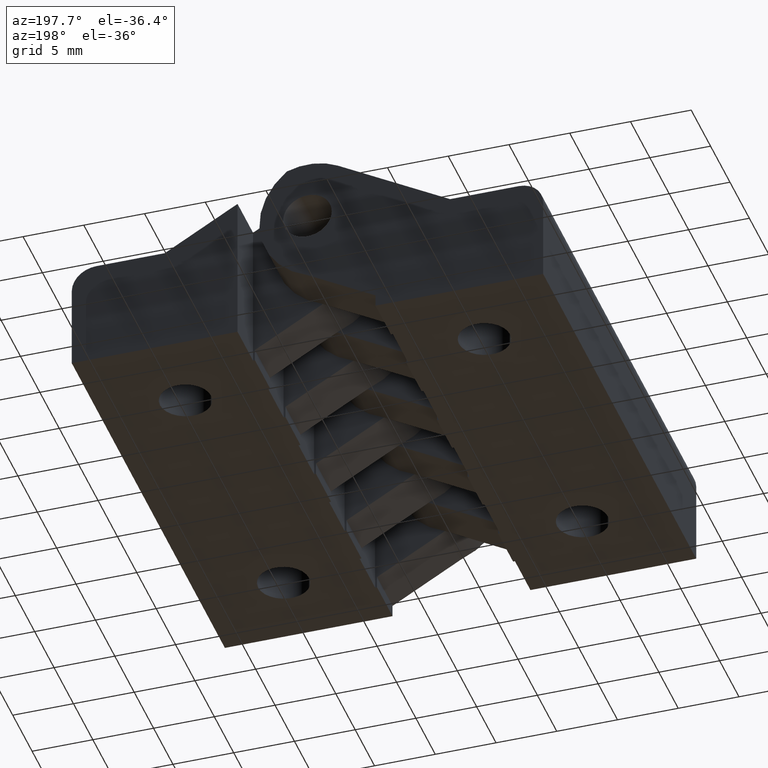
[diagram: clean part render]
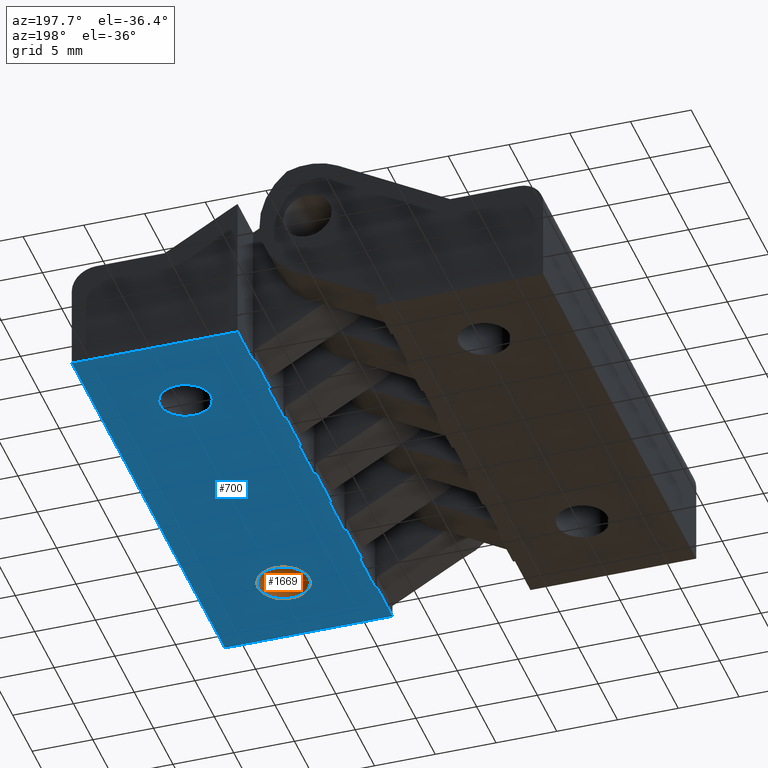
[diagram: same view with the hole feature highlighted: cylindrical wall and planar end face, labeled with their STEP entity ids]
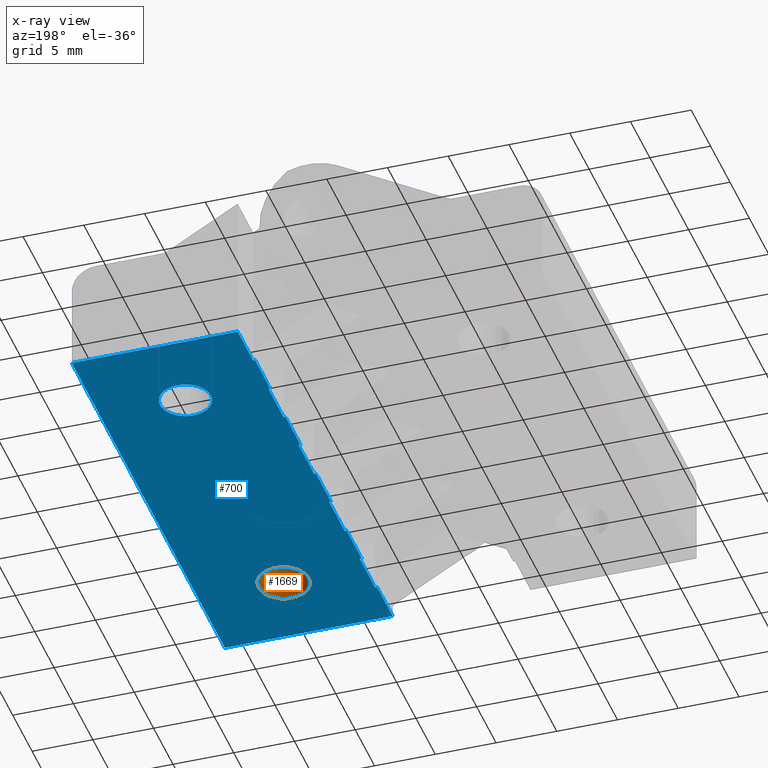
[diagram: x-ray of the same camera — body ghosted, the hole faces saturated]
A machine part, auxiliary view. The highlighted faces form one hole feature of diameter 4.2 mm: the cylindrical wall (entity #1669, orange) and its adjacent planar end face (entity #700, blue) — they share a circular edge in the B-rep.
The next image is the same camera in x-ray (body ghosted, the hole faces saturated) — the bore reads through the body.
Wall:
#660=CARTESIAN_POINT('',(26.899999999892458,-25.900000000055115,1.585918E-015));
#661=VERTEX_POINT('',#660);
#662=CARTESIAN_POINT('',(22.699999999909295,-25.900000000055115,1.585918E-015));
#663=VERTEX_POINT('',#662);
#664=CARTESIAN_POINT('',(24.799999999900876,-25.900000000055115,1.585918E-015));
#665=DIRECTION('',(0.0,6.123234E-017,1.0));
#666=DIRECTION('',(1.0,0.0,0.0));
#667=AXIS2_PLACEMENT_3D('',#664,#665,#666);
#668=CIRCLE('',#667,2.099999999991582);
#669=EDGE_CURVE('',#661,#663,#668,.T.);
#671=CARTESIAN_POINT('',(24.799999999900876,-25.900000000055115,1.585918E-015));
#672=DIRECTION('',(0.0,6.123234E-017,1.0));
#673=DIRECTION('',(1.0,0.0,0.0));
#674=AXIS2_PLACEMENT_3D('',#671,#672,#673);
#675=CIRCLE('',#674,2.099999999991582);
#676=EDGE_CURVE('',#663,#661,#675,.T.);
#1635=CARTESIAN_POINT('',(24.799999999900876,-25.900000000055115,-2.158050966487322));
#1636=DIRECTION('',(0.0,-6.123234E-017,-1.0));
#1637=DIRECTION('',(1.0,0.0,0.0));
#1638=AXIS2_PLACEMENT_3D('',#1635,#1636,#1637);
#1639=CYLINDRICAL_SURFACE('',#1638,2.099999999991582);
#1640=CARTESIAN_POINT('',(22.699999999909295,-25.900000000055115,6.849999999972654));
#1641=VERTEX_POINT('',#1640);
#1642=CARTESIAN_POINT('',(26.899999999892458,-25.900000000055115,6.849999999972654));
#1643=VERTEX_POINT('',#1642);
#1644=CARTESIAN_POINT('',(24.799999999900876,-25.900000000055115,6.849999999972654));
#1645=DIRECTION('',(0.0,-6.123234E-017,-1.0));
#1646=DIRECTION('',(1.0,0.0,0.0));
#1647=AXIS2_PLACEMENT_3D('',#1644,#1645,#1646);
#1648=CIRCLE('',#1647,2.099999999991582);
#1649=EDGE_CURVE('',#1641,#1643,#1648,.T.);
#1650=ORIENTED_EDGE('',*,*,#1649,.F.);
#1651=CARTESIAN_POINT('',(24.799999999900876,-25.900000000055115,6.849999999972654));
#1652=DIRECTION('',(0.0,-6.123234E-017,-1.0));
#1653=DIRECTION('',(1.0,0.0,0.0));
#1654=AXIS2_PLACEMENT_3D('',#1651,#1652,#1653);
#1655=CIRCLE('',#1654,2.099999999991582);
#1656=EDGE_CURVE('',#1643,#1641,#1655,.T.);
#1657=ORIENTED_EDGE('',*,*,#1656,.F.);
#1658=CARTESIAN_POINT('',(26.899999999892458,-25.900000000055115,1.776357E-015));
#1659=DIRECTION('',(0.0,0.0,1.0));
#1660=VECTOR('',#1659,6.849999999972653);
#1661=LINE('',#1658,#1660);
#1662=EDGE_CURVE('',#661,#1643,#1661,.T.);
#1663=ORIENTED_EDGE('',*,*,#1662,.F.);
#1664=ORIENTED_EDGE('',*,*,#676,.F.);
#1665=ORIENTED_EDGE('',*,*,#669,.F.);
#1666=ORIENTED_EDGE('',*,*,#1662,.T.);
#1667=EDGE_LOOP('',(#1650,#1657,#1663,#1664,#1665,#1666));
#1668=FACE_OUTER_BOUND('',#1667,.T.);
#1669=ADVANCED_FACE('',(#1668),#1639,.F.);
End face:
#373=CARTESIAN_POINT('',(17.999999999928065,-20.825000000027558,1.275163E-015));
#374=VERTEX_POINT('',#373);
#381=CARTESIAN_POINT('',(17.999999999928065,-24.700000000027561,1.512439E-015));
#382=VERTEX_POINT('',#381);
#383=CARTESIAN_POINT('',(17.999999999928065,-20.825000000027558,1.275163E-015));
#384=DIRECTION('',(0.0,-1.0,0.0));
#385=VECTOR('',#384,3.875000000000004);
#386=LINE('',#383,#385);
#387=EDGE_CURVE('',#374,#382,#386,.T.);
#403=CARTESIAN_POINT('',(17.999999999928065,2.799999999972442,-1.714506E-016));
#404=VERTEX_POINT('',#403);
#411=CARTESIAN_POINT('',(17.999999999928065,-1.075000000027558,6.582477E-017));
#412=VERTEX_POINT('',#411);
#413=CARTESIAN_POINT('',(17.999999999928065,2.799999999972442,-1.714506E-016));
#414=DIRECTION('',(0.0,-1.0,0.0));
#415=VECTOR('',#414,3.875000000000000);
#416=LINE('',#413,#415);
#417=EDGE_CURVE('',#404,#412,#416,.T.);
#434=CARTESIAN_POINT('',(17.999999999928065,-5.075000000027558,3.107541E-016));
#435=VERTEX_POINT('',#434);
#442=CARTESIAN_POINT('',(17.999999999928065,-8.950000000027558,5.480294E-016));
#443=VERTEX_POINT('',#442);
#444=CARTESIAN_POINT('',(17.999999999928065,-5.075000000027558,3.107541E-016));
#445=DIRECTION('',(0.0,-1.0,0.0));
#446=VECTOR('',#445,3.875000000000000);
#447=LINE('',#444,#446);
#448=EDGE_CURVE('',#435,#443,#447,.T.);
#465=CARTESIAN_POINT('',(17.999999999928065,-12.950000000027558,7.929588E-016));
#466=VERTEX_POINT('',#465);
#473=CARTESIAN_POINT('',(17.999999999928065,-16.825000000027558,1.030234E-015));
#474=VERTEX_POINT('',#473);
#475=CARTESIAN_POINT('',(17.999999999928065,-12.950000000027558,7.929588E-016));
#476=DIRECTION('',(0.0,-1.0,0.0));
#477=VECTOR('',#476,3.875000000000000);
#478=LINE('',#475,#477);
#479=EDGE_CURVE('',#466,#474,#478,.T.);
#497=CARTESIAN_POINT('',(17.999999999928065,-28.700000000027558,1.757368E-015));
#498=VERTEX_POINT('',#497);
#505=CARTESIAN_POINT('',(17.999999999928065,-32.700000000027558,2.002298E-015));
#506=VERTEX_POINT('',#505);
#507=CARTESIAN_POINT('',(17.999999999928065,-28.700000000027558,1.757368E-015));
#508=DIRECTION('',(0.0,-1.0,0.0));
#509=VECTOR('',#508,4.0);
#510=LINE('',#507,#509);
#511=EDGE_CURVE('',#498,#506,#510,.T.);
#522=CARTESIAN_POINT('',(17.999999999928065,6.799999999814439,-4.163799E-016));
#523=DIRECTION('',(0.0,0.0,-1.0));
#524=DIRECTION('',(1.0,0.0,0.0));
#525=AXIS2_PLACEMENT_3D('',#522,#523,#524);
#526=PLANE('',#525);
#527=CARTESIAN_POINT('',(31.799999999872881,6.799999999814439,-4.163799E-016));
#528=VERTEX_POINT('',#527);
#529=CARTESIAN_POINT('',(31.799999999872881,-32.700000000027558,2.002298E-015));
#530=VERTEX_POINT('',#529);
#531=CARTESIAN_POINT('',(31.799999999872881,6.799999999814439,-4.163799E-016));
#532=DIRECTION('',(0.0,-1.0,0.0));
#533=VECTOR('',#532,39.499999999841997);
#534=LINE('',#531,#533);
#535=EDGE_CURVE('',#528,#530,#534,.T.);
#536=ORIENTED_EDGE('',*,*,#535,.T.);
#537=CARTESIAN_POINT('',(17.999999999928065,-32.700000000027558,2.002298E-015));
#538=DIRECTION('',(1.0,0.0,0.0));
#539=VECTOR('',#538,13.799999999944816);
#540=LINE('',#537,#539);
#541=EDGE_CURVE('',#506,#530,#540,.T.);
#542=ORIENTED_EDGE('',*,*,#541,.F.);
#543=ORIENTED_EDGE('',*,*,#511,.F.);
#544=CARTESIAN_POINT('',(18.153425809773296,-28.700000000027558,1.757368E-015));
#545=VERTEX_POINT('',#544);
#546=CARTESIAN_POINT('',(17.999999999928065,-28.700000000027558,1.757368E-015));
#547=DIRECTION('',(1.0,0.0,0.0));
#548=VECTOR('',#547,0.153425809845231);
#549=LINE('',#546,#548);
#550=EDGE_CURVE('',#498,#545,#549,.T.);
#551=ORIENTED_EDGE('',*,*,#550,.T.);
#552=CARTESIAN_POINT('',(18.153425809773296,-24.700000000027558,1.512439E-015));
#553=VERTEX_POINT('',#552);
#554=CARTESIAN_POINT('',(18.153425809773296,-28.700000000027558,1.757368E-015));
#555=DIRECTION('',(0.0,1.0,0.0));
#556=VECTOR('',#555,4.0);
#557=LINE('',#554,#556);
#558=EDGE_CURVE('',#545,#553,#557,.T.);
#559=ORIENTED_EDGE('',*,*,#558,.T.);
#560=CARTESIAN_POINT('',(17.999999999928065,-24.700000000027561,1.512439E-015));
#561=DIRECTION('',(1.0,0.0,0.0));
#562=VECTOR('',#561,0.153425809845231);
#563=LINE('',#560,#562);
#564=EDGE_CURVE('',#382,#553,#563,.T.);
#565=ORIENTED_EDGE('',*,*,#564,.F.);
#566=ORIENTED_EDGE('',*,*,#387,.F.);
#567=CARTESIAN_POINT('',(18.153425809773296,-20.825000000027558,1.275163E-015));
#568=VERTEX_POINT('',#567);
#569=CARTESIAN_POINT('',(17.999999999928065,-20.825000000027558,1.275163E-015));
#570=DIRECTION('',(1.0,0.0,0.0));
#571=VECTOR('',#570,0.153425809845231);
#572=LINE('',#569,#571);
#573=EDGE_CURVE('',#374,#568,#572,.T.);
#574=ORIENTED_EDGE('',*,*,#573,.T.);
#575=CARTESIAN_POINT('',(18.153425809773296,-16.825000000027558,1.030234E-015));
#576=VERTEX_POINT('',#575);
#577=CARTESIAN_POINT('',(18.153425809773296,-20.825000000027558,1.275163E-015));
#578=DIRECTION('',(0.0,1.0,0.0));
#579=VECTOR('',#578,4.0);
#580=LINE('',#577,#579);
#581=EDGE_CURVE('',#568,#576,#580,.T.);
#582=ORIENTED_EDGE('',*,*,#581,.T.);
#583=CARTESIAN_POINT('',(17.999999999928065,-16.825000000027558,1.030234E-015));
#584=DIRECTION('',(1.0,0.0,0.0));
#585=VECTOR('',#584,0.153425809845231);
#586=LINE('',#583,#585);
#587=EDGE_CURVE('',#474,#576,#586,.T.);
#588=ORIENTED_EDGE('',*,*,#587,.F.);
#589=ORIENTED_EDGE('',*,*,#479,.F.);
#590=CARTESIAN_POINT('',(18.153425809773296,-12.950000000027558,7.929588E-016));
#591=VERTEX_POINT('',#590);
#592=CARTESIAN_POINT('',(17.999999999928065,-12.950000000027558,7.929588E-016));
#593=DIRECTION('',(1.0,0.0,0.0));
#594=VECTOR('',#593,0.153425809845231);
#595=LINE('',#592,#594);
#596=EDGE_CURVE('',#466,#591,#595,.T.);
#597=ORIENTED_EDGE('',*,*,#596,.T.);
#598=CARTESIAN_POINT('',(18.153425809773296,-8.950000000027558,5.480294E-016));
#599=VERTEX_POINT('',#598);
#600=CARTESIAN_POINT('',(18.153425809773296,-12.950000000027558,7.929588E-016));
#601=DIRECTION('',(0.0,1.0,0.0));
#602=VECTOR('',#601,4.0);
#603=LINE('',#600,#602);
#604=EDGE_CURVE('',#591,#599,#603,.T.);
#605=ORIENTED_EDGE('',*,*,#604,.T.);
#606=CARTESIAN_POINT('',(17.999999999928065,-8.950000000027558,5.480294E-016));
#607=DIRECTION('',(1.0,0.0,0.0));
#608=VECTOR('',#607,0.153425809845231);
#609=LINE('',#606,#608);
#610=EDGE_CURVE('',#443,#599,#609,.T.);
#611=ORIENTED_EDGE('',*,*,#610,.F.);
#612=ORIENTED_EDGE('',*,*,#448,.F.);
#613=CARTESIAN_POINT('',(18.153425809773296,-5.075000000027558,3.107541E-016));
#614=VERTEX_POINT('',#613);
#615=CARTESIAN_POINT('',(17.999999999928065,-5.075000000027558,3.107541E-016));
#616=DIRECTION('',(1.0,0.0,0.0));
#617=VECTOR('',#616,0.153425809845231);
#618=LINE('',#615,#617);
#619=EDGE_CURVE('',#435,#614,#618,.T.);
#620=ORIENTED_EDGE('',*,*,#619,.T.);
#621=CARTESIAN_POINT('',(18.153425809773296,-1.075000000027558,6.582477E-017));
#622=VERTEX_POINT('',#621);
#623=CARTESIAN_POINT('',(18.153425809773296,-5.075000000027558,3.107541E-016));
#624=DIRECTION('',(0.0,1.0,0.0));
#625=VECTOR('',#624,4.0);
#626=LINE('',#623,#625);
#627=EDGE_CURVE('',#614,#622,#626,.T.);
#628=ORIENTED_EDGE('',*,*,#627,.T.);
#629=CARTESIAN_POINT('',(17.999999999928065,-1.075000000027558,6.582477E-017));
#630=DIRECTION('',(1.0,0.0,0.0));
#631=VECTOR('',#630,0.153425809845231);
#632=LINE('',#629,#631);
#633=EDGE_CURVE('',#412,#622,#632,.T.);
#634=ORIENTED_EDGE('',*,*,#633,.F.);
#635=ORIENTED_EDGE('',*,*,#417,.F.);
#636=CARTESIAN_POINT('',(18.153425809773296,2.799999999972442,-1.714506E-016));
#637=VERTEX_POINT('',#636);
#638=CARTESIAN_POINT('',(17.999999999928065,2.799999999972442,-1.714506E-016));
#639=DIRECTION('',(1.0,0.0,0.0));
#640=VECTOR('',#639,0.153425809845231);
#641=LINE('',#638,#640);
#642=EDGE_CURVE('',#404,#637,#641,.T.);
#643=ORIENTED_EDGE('',*,*,#642,.T.);
#644=CARTESIAN_POINT('',(18.153425809773296,6.799999999814439,-4.163799E-016));
#645=VERTEX_POINT('',#644);
#646=CARTESIAN_POINT('',(18.153425809773296,6.799999999814439,-4.163799E-016));
#647=DIRECTION('',(0.0,-1.0,0.0));
#648=VECTOR('',#647,3.999999999841997);
#649=LINE('',#646,#648);
#650=EDGE_CURVE('',#645,#637,#649,.T.);
#651=ORIENTED_EDGE('',*,*,#650,.F.);
#652=CARTESIAN_POINT('',(18.153425809773296,6.799999999814439,-4.163799E-016));
#653=DIRECTION('',(1.0,0.0,0.0));
#654=VECTOR('',#653,13.646574190099585);
#655=LINE('',#652,#654);
#656=EDGE_CURVE('',#645,#528,#655,.T.);
#657=ORIENTED_EDGE('',*,*,#656,.T.);
#658=EDGE_LOOP('',(#536,#542,#543,#551,#559,#565,#566,#574,#582,#588,#589,#597,#605,#611,#612,#620,#628,#634,#635,#643,#651,#657));
#659=FACE_OUTER_BOUND('',#658,.T.);
#660=CARTESIAN_POINT('',(26.899999999892458,-25.900000000055115,1.585918E-015));
#661=VERTEX_POINT('',#660);
#662=CARTESIAN_POINT('',(22.699999999909295,-25.900000000055115,1.585918E-015));
#663=VERTEX_POINT('',#662);
#664=CARTESIAN_POINT('',(24.799999999900876,-25.900000000055115,1.585918E-015));
#665=DIRECTION('',(0.0,6.123234E-017,1.0));
#666=DIRECTION('',(1.0,0.0,0.0));
#667=AXIS2_PLACEMENT_3D('',#664,#665,#666);
#668=CIRCLE('',#667,2.099999999991582);
#669=EDGE_CURVE('',#661,#663,#668,.T.);
#670=ORIENTED_EDGE('',*,*,#669,.T.);
#671=CARTESIAN_POINT('',(24.799999999900876,-25.900000000055115,1.585918E-015));
#672=DIRECTION('',(0.0,6.123234E-017,1.0));
#673=DIRECTION('',(1.0,0.0,0.0));
#674=AXIS2_PLACEMENT_3D('',#671,#672,#673);
#675=CIRCLE('',#674,2.099999999991582);
#676=EDGE_CURVE('',#663,#661,#675,.T.);
#677=ORIENTED_EDGE('',*,*,#676,.T.);
#678=EDGE_LOOP('',(#670,#677));
#679=FACE_BOUND('',#678,.T.);
#680=CARTESIAN_POINT('',(26.899999999892458,-0.600000000155887,3.673940E-017));
#681=VERTEX_POINT('',#680);
#682=CARTESIAN_POINT('',(22.699999999909295,-0.600000000155887,3.673940E-017));
#683=VERTEX_POINT('',#682);
#684=CARTESIAN_POINT('',(24.799999999900876,-0.600000000155887,3.673940E-017));
#685=DIRECTION('',(0.0,6.123234E-017,1.0));
#686=DIRECTION('',(1.0,0.0,0.0));
#687=AXIS2_PLACEMENT_3D('',#684,#685,#686);
#688=CIRCLE('',#687,2.099999999991582);
#689=EDGE_CURVE('',#681,#683,#688,.T.);
#690=ORIENTED_EDGE('',*,*,#689,.T.);
#691=CARTESIAN_POINT('',(24.799999999900876,-0.600000000155887,3.673940E-017));
#692=DIRECTION('',(0.0,6.123234E-017,1.0));
#693=DIRECTION('',(1.0,0.0,0.0));
#694=AXIS2_PLACEMENT_3D('',#691,#692,#693);
#695=CIRCLE('',#694,2.099999999991582);
#696=EDGE_CURVE('',#683,#681,#695,.T.);
#697=ORIENTED_EDGE('',*,*,#696,.T.);
#698=EDGE_LOOP('',(#690,#697));
#699=FACE_BOUND('',#698,.T.);
#700=ADVANCED_FACE('',(#659,#679,#699),#526,.T.);